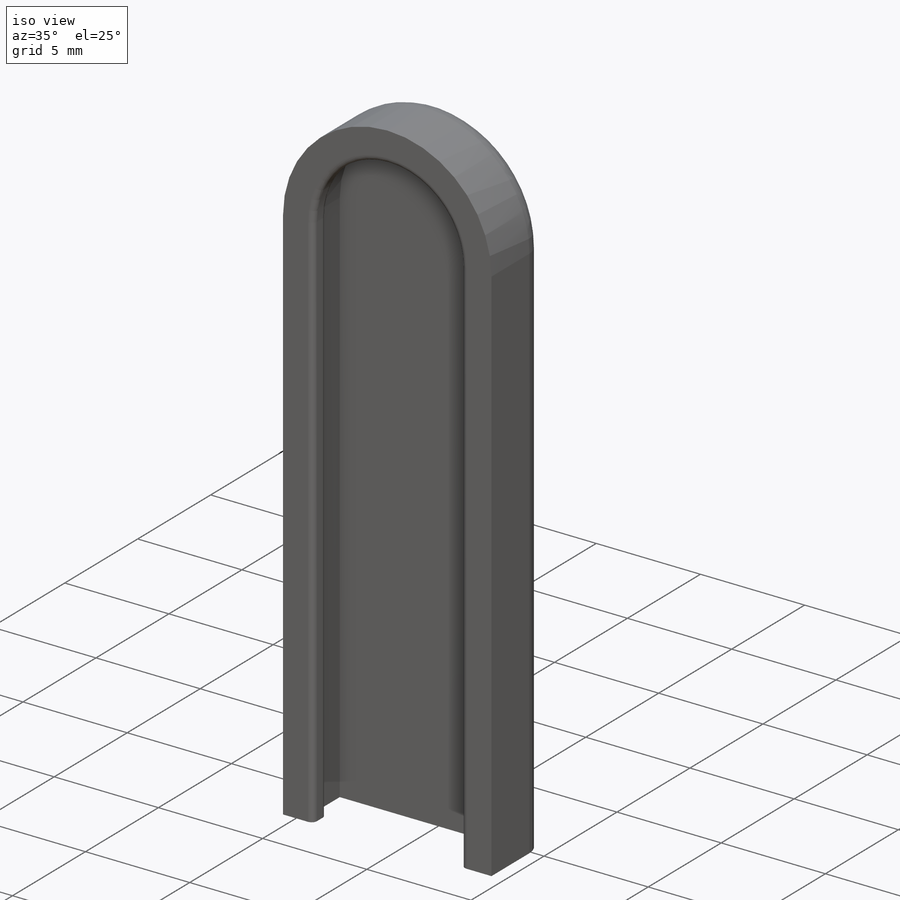
[diagram: iso view]
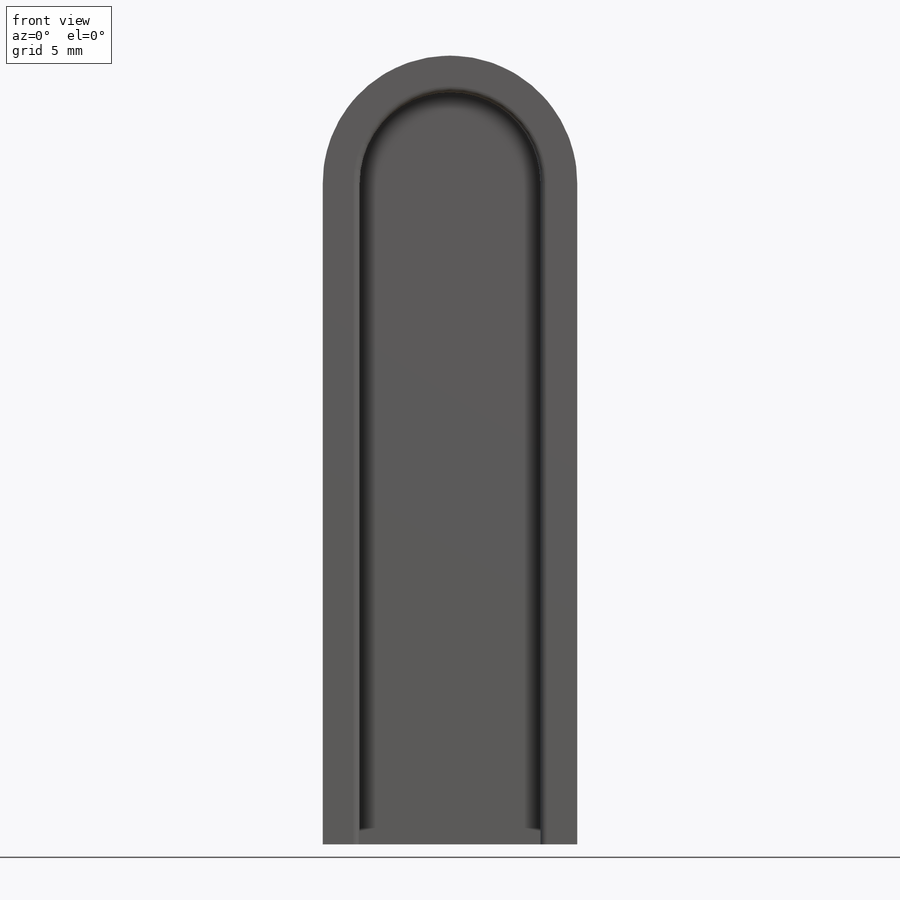
[diagram: front view]
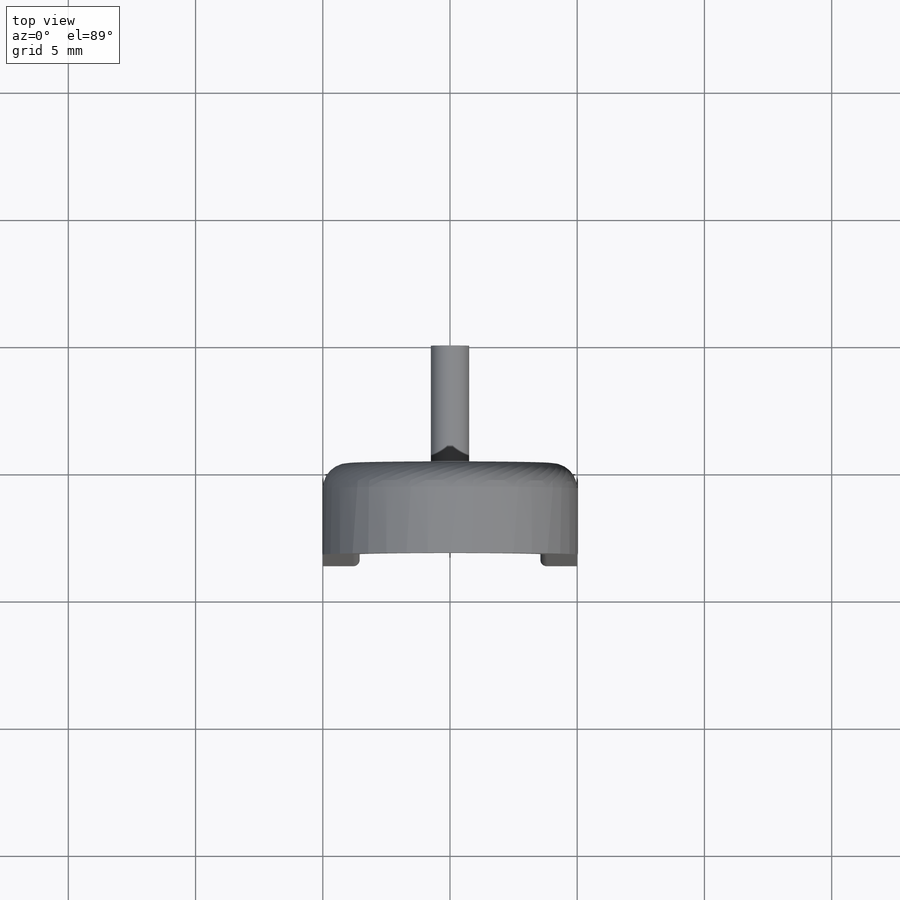
[diagram: top view]
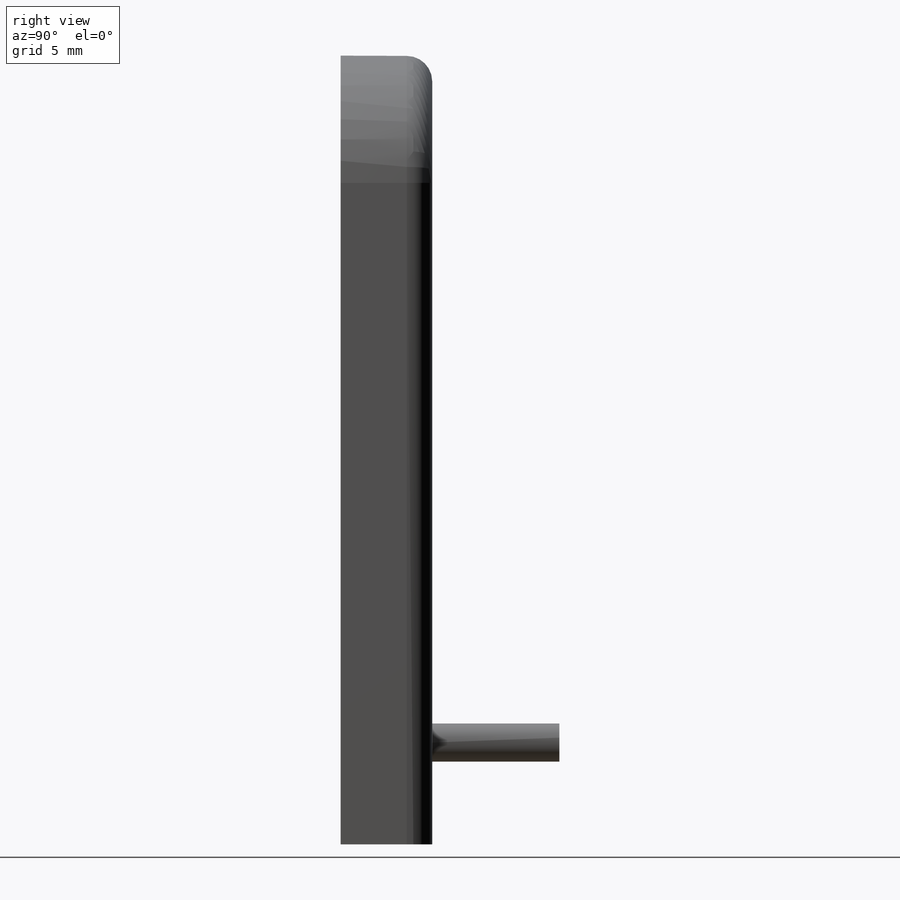
[diagram: right view]
SOLIDWORKS PART (.sldprt)
format: sldprt  version: not decoded by parser v0  size: 232,960 bytes
history: native  units: mm
features: sketch x7, extrude x4, cut_extrude x3, fillet x2, material x1 (+16 scaffold rows collapsed)
feature tree (33):
  scaffold x16  (default folders/planes/origin — collapsed)
  material  "Material <not specified>"
  sketch  "Sketch1"  dims[D1=26.0mm]
  extrude  "Boss-Extrude1"  Depth=1mm
  sketch  "Sketch2"
  extrude  "Boss-Extrude5"  Depth=3.6mm
  sketch  "Sketch6"  dims[D1=1.45mm]
  extrude  "Boss-Extrude9"  [1 undecoded]
  sketch  "Sketch7"  dims[D1=1.7mm]
  cut_extrude  "Cut-Extrude1"  Depth=26mm
  sketch  "Sketch10"
  cut_extrude  "Cut-Extrude3"  [1 undecoded]
  sketch  "Sketch11"
  cut_extrude  "Cut-Extrude4"  [1 undecoded]
  fillet  "Fillet1"  Radius=0.25mm
  fillet  "Fillet2"  Radius=1mm
  sketch  "Sketch12"  dims[D1=1.5mm]
  extrude  "Boss-Extrude10"  Depth=5mm
decode coverage: 10 of 16 modeling features carry decoded parameters
note: 3 parameter values undecoded
summary: no parameter record found for 3 features
note: suppression state not decoded; provenance and decode notes live in map.json
